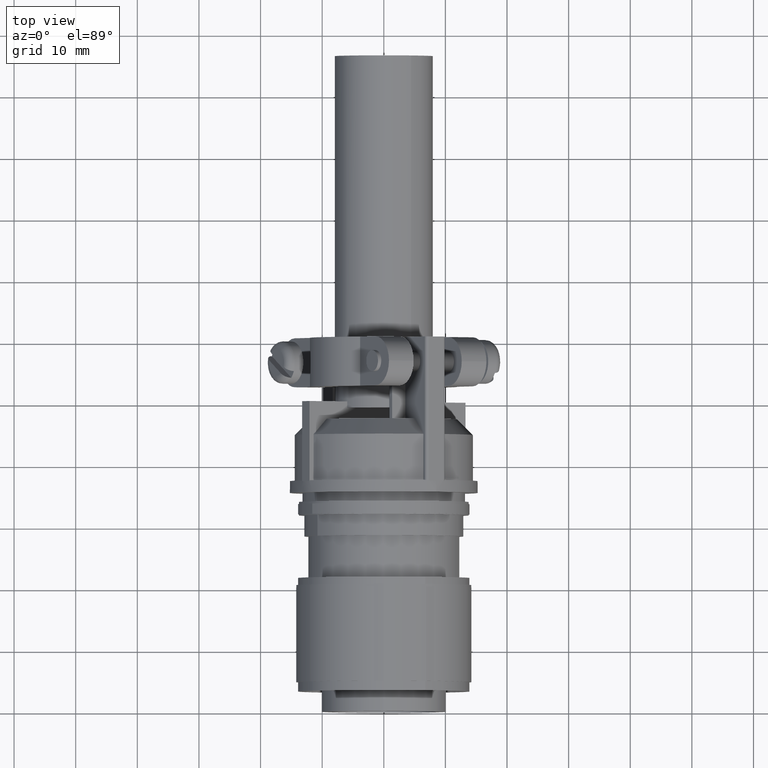
[diagram: clean part render]
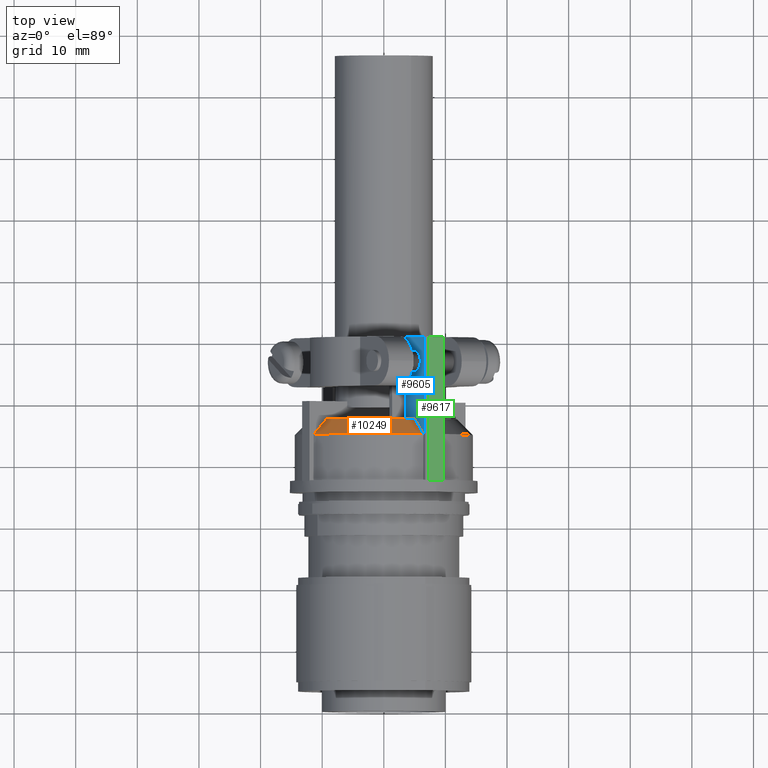
[diagram: same view with three faces highlighted in distinct colors, each labeled with its STEP entity id]
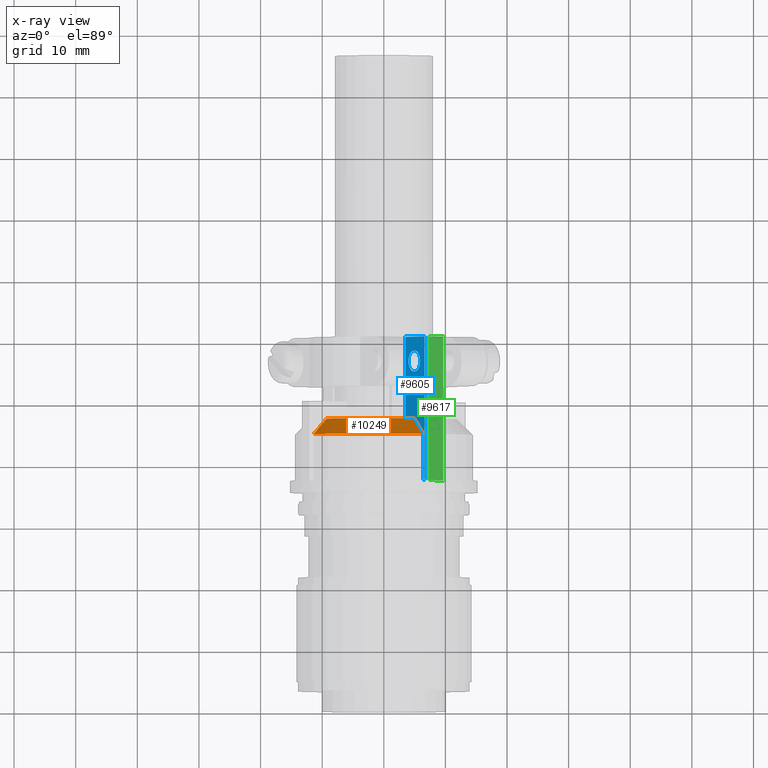
[diagram: x-ray of the same camera — body ghosted, the three highlighted faces saturated]
A machine part, top view with three faces highlighted in distinct colors.
The next image is the same camera in x-ray (body ghosted, the three faces saturated) — at least one of them is partly hidden behind the body in this view.
Their STEP definitions:

[orange] entity #10249 — the highlighted conical surface has half-angle 45 deg.
#2482 = AXIS2_PLACEMENT_3D ( 'NONE', #4506, #4508, #4511 ) ;
#2489 = AXIS2_PLACEMENT_3D ( 'NONE', #4646, #4647, #4649 ) ;
#3734 = DIRECTION ( 'NONE',  ( 1.000000000000000000, 0.0000000000000000000, 0.0000000000000000000 ) ) ;
#3739 = DIRECTION ( 'NONE',  ( 0.0000000000000000000, 0.0000000000000000000, 1.000000000000000000 ) ) ;
#3743 = CARTESIAN_POINT ( 'NONE',  ( 0.0000000000000000000, 0.0000000000000000000, 2.321558866024211500 ) ) ;
#4450 = CARTESIAN_POINT ( 'NONE',  ( 0.4639773701378114300, 0.07499999999999998300, 2.321558866024211500 ) ) ;
#4466 = CARTESIAN_POINT ( 'NONE',  ( 0.4977044622532403300, 0.07499999999999998300, 2.354853775603174000 ) ) ;
#4473 = CARTESIAN_POINT ( 'NONE',  ( 0.04250000000000004500, 0.4680745132988973200, 2.321558866024211500 ) ) ;
#4477 = VERTEX_POINT ( 'NONE', #6338 ) ;
#4478 = CARTESIAN_POINT ( 'NONE',  ( 0.04250000000000004500, 0.5015328349743050100, 2.354880116309348000 ) ) ;
#4481 = CARTESIAN_POINT ( 'NONE',  ( 0.5313866660034538600, 0.07499999999999999700, 2.388193915244678100 ) ) ;
#4484 = CARTESIAN_POINT ( 'NONE',  ( 0.5650442460551206000, 0.07499999999999999700, 2.421558866024211100 ) ) ;
#4486 = VERTEX_POINT ( 'NONE', #6347 ) ;
#4491 = CARTESIAN_POINT ( 'NONE',  ( 0.04250000000000002400, 0.5349770058996746700, 2.388215582636495200 ) ) ;
#4494 = CARTESIAN_POINT ( 'NONE',  ( 0.04250000000000002400, 0.5684133619119097200, 2.421558866024211100 ) ) ;
#4506 = CARTESIAN_POINT ( 'NONE',  ( 0.0000000000000000000, 0.0000000000000000000, 2.321558866024211500 ) ) ;
#4508 = DIRECTION ( 'NONE',  ( -0.0000000000000000000, -0.0000000000000000000, -1.000000000000000000 ) ) ;
#4511 = DIRECTION ( 'NONE',  ( -1.000000000000000000, 0.0000000000000000000, 0.0000000000000000000 ) ) ;
#4611 = VERTEX_POINT ( 'NONE', #6389 ) ;
#4646 = CARTESIAN_POINT ( 'NONE',  ( 0.0000000000000000000, 0.0000000000000000000, 2.421558866024211100 ) ) ;
#4647 = DIRECTION ( 'NONE',  ( -0.0000000000000000000, -0.0000000000000000000, -1.000000000000000000 ) ) ;
#4649 = DIRECTION ( 'NONE',  ( -1.000000000000000000, 0.0000000000000000000, 0.0000000000000000000 ) ) ;
#5272 = CIRCLE ( 'NONE', #2482, 0.4699999999999996400 ) ;
#5288 = CIRCLE ( 'NONE', #2489, 0.5699999999999996200 ) ;
#6338 = CARTESIAN_POINT ( 'NONE',  ( 0.04250000000000002400, 0.5684133619119097200, 2.421558866024211100 ) ) ;
#6347 = CARTESIAN_POINT ( 'NONE',  ( 0.04250000000000004500, 0.4680745132988973200, 2.321558866024211500 ) ) ;
#6389 = CARTESIAN_POINT ( 'NONE',  ( 0.4639773701378114300, 0.07499999999999998300, 2.321558866024211500 ) ) ;
#6514 = ORIENTED_EDGE ( 'NONE', *, *, #7683, .F. ) ;
#6515 = ORIENTED_EDGE ( 'NONE', *, *, #7722, .T. ) ;
#6516 = ORIENTED_EDGE ( 'NONE', *, *, #7685, .T. ) ;
#6517 = ORIENTED_EDGE ( 'NONE', *, *, #7687, .F. ) ;
#7683 = EDGE_CURVE ( 'NONE', #4611, #16303, #16967, .T. ) ;
#7685 = EDGE_CURVE ( 'NONE', #4486, #4477, #16949, .T. ) ;
#7687 = EDGE_CURVE ( 'NONE', #4486, #4611, #5272, .T. ) ;
#7722 = EDGE_CURVE ( 'NONE', #4477, #16303, #5288, .T. ) ;
#10249 = ADVANCED_FACE ( 'NONE', ( #18229 ), #18240, .T. ) ;
#11200 = EDGE_LOOP ( 'NONE', ( #6517, #6516, #6515, #6514 ) ) ;
#14224 = CARTESIAN_POINT ( 'NONE',  ( 0.5650442460551206000, 0.07499999999999999700, 2.421558866024211100 ) ) ;
#16303 = VERTEX_POINT ( 'NONE', #14224 ) ;
#16770 = AXIS2_PLACEMENT_3D ( 'NONE', #3743, #3739, #3734 ) ;
#16949 = B_SPLINE_CURVE_WITH_KNOTS ( 'NONE', 3,
 ( #4473, #4478, #4491, #4494 ),
 .UNSPECIFIED., .F., .F.,
 ( 4, 4 ),
 ( 0.01370706926169148700, 0.01730506337471610800 ),
 .UNSPECIFIED. ) ;
#16967 = B_SPLINE_CURVE_WITH_KNOTS ( 'NONE', 3,
 ( #4450, #4466, #4481, #4484 ),
 .UNSPECIFIED., .F., .F.,
 ( 4, 4 ),
 ( 0.01182331990781825700, 0.01543413581498872200 ),
 .UNSPECIFIED. ) ;
#18229 = FACE_OUTER_BOUND ( 'NONE', #11200, .T. ) ;
#18240 = CONICAL_SURFACE ( 'NONE', #16770, 0.4699999999999996400, 0.7853981633974482800 ) ;

[blue] entity #9605 — the highlighted planar face has unit normal (0.8301, -0, -0.5576).
#233 = EDGE_CURVE ( 'NONE', #453, #16327, #569, .T. ) ;
#234 = EDGE_CURVE ( 'NONE', #16327, #16310, #567, .T. ) ;
#235 = EDGE_CURVE ( 'NONE', #4588, #16310, #573, .T. ) ;
#453 = VERTEX_POINT ( 'NONE', #19336 ) ;
#567 = LINE ( 'NONE', #19303, #574 ) ;
#569 = LINE ( 'NONE', #19295, #572 ) ;
#572 = VECTOR ( 'NONE', #19297, 39.37007874015748100 ) ;
#573 = LINE ( 'NONE', #19311, #576 ) ;
#574 = VECTOR ( 'NONE', #19293, 39.37007874015748100 ) ;
#576 = VECTOR ( 'NONE', #19314, 39.37007874015748100 ) ;
#1556 = AXIS2_PLACEMENT_3D ( 'NONE', #14071, #14073, #14075 ) ;
#1575 = AXIS2_PLACEMENT_3D ( 'NONE', #14431, #14433, #14434 ) ;
#2516 = AXIS2_PLACEMENT_3D ( 'NONE', #4843, #4848, #4849 ) ;
#3444 = LINE ( 'NONE', #13755, #3447 ) ;
#3447 = VECTOR ( 'NONE', #13747, 39.37007874015748100 ) ;
#3461 = LINE ( 'NONE', #13852, #3509 ) ;
#3509 = VECTOR ( 'NONE', #13847, 39.37007874015748100 ) ;
#3587 = CIRCLE ( 'NONE', #1556, 0.06750000000000010200 ) ;
#3684 = CIRCLE ( 'NONE', #1575, 0.06750000000000010200 ) ;
#4450 = CARTESIAN_POINT ( 'NONE',  ( 0.4639773701378114300, 0.07499999999999998300, 2.321558866024211500 ) ) ;
#4466 = CARTESIAN_POINT ( 'NONE',  ( 0.4977044622532403300, 0.07499999999999998300, 2.354853775603174000 ) ) ;
#4481 = CARTESIAN_POINT ( 'NONE',  ( 0.5313866660034538600, 0.07499999999999999700, 2.388193915244678100 ) ) ;
#4484 = CARTESIAN_POINT ( 'NONE',  ( 0.5650442460551206000, 0.07499999999999999700, 2.421558866024211100 ) ) ;
#4586 = DIRECTION ( 'NONE',  ( 0.0000000000000000000, 0.0000000000000000000, 1.000000000000000000 ) ) ;
#4588 = VERTEX_POINT ( 'NONE', #6381 ) ;
#4589 = CARTESIAN_POINT ( 'NONE',  ( 0.5650442460551206000, 0.07499999999999999700, -0.1454515189346649300 ) ) ;
#4611 = VERTEX_POINT ( 'NONE', #6389 ) ;
#4843 = CARTESIAN_POINT ( 'NONE',  ( 0.3593089367457345000, 0.07499999999999998300, 2.719999999999999800 ) ) ;
#4844 = PLANE ( 'NONE',  #2516 ) ;
#4848 = DIRECTION ( 'NONE',  ( 3.868314762870591200E-017, -1.000000000000000000, 0.0000000000000000000 ) ) ;
#4849 = DIRECTION ( 'NONE',  ( 1.000000000000000000, 3.868314762870591200E-017, 0.0000000000000000000 ) ) ;
#5284 = LINE ( 'NONE', #4589, #5286 ) ;
#5286 = VECTOR ( 'NONE', #4586, 39.37007874015748100 ) ;
#5337 = FACE_OUTER_BOUND ( 'NONE', #11108, .T. ) ;
#5341 = FACE_BOUND ( 'NONE', #11103, .T. ) ;
#6381 = CARTESIAN_POINT ( 'NONE',  ( 0.3593089367457345000, 0.07499999999999998300, 2.321558866024211500 ) ) ;
#6389 = CARTESIAN_POINT ( 'NONE',  ( 0.4639773701378114300, 0.07499999999999998300, 2.321558866024211500 ) ) ;
#7683 = EDGE_CURVE ( 'NONE', #4611, #16303, #16967, .T. ) ;
#7716 = EDGE_CURVE ( 'NONE', #16303, #19733, #5284, .T. ) ;
#9605 = ADVANCED_FACE ( 'NONE', ( #5337, #5341 ), #4844, .F. ) ;
#11103 = EDGE_LOOP ( 'NONE', ( #20941, #20939 ) ) ;
#11108 = EDGE_LOOP ( 'NONE', ( #20954, #20952, #20950, #20948, #20946, #20944, #20943 ) ) ;
#13747 = DIRECTION ( 'NONE',  ( 1.000000000000000000, 3.868314762870591200E-017, 0.0000000000000000000 ) ) ;
#13755 = CARTESIAN_POINT ( 'NONE',  ( 0.3593089367457345000, 0.07499999999999998300, 2.715875068773271600 ) ) ;
#13847 = DIRECTION ( 'NONE',  ( 1.000000000000000000, 3.868314762870591200E-017, 0.0000000000000000000 ) ) ;
#13852 = CARTESIAN_POINT ( 'NONE',  ( 0.3593089367457345000, 0.07499999999999998300, 2.321558866024211500 ) ) ;
#14071 = CARTESIAN_POINT ( 'NONE',  ( 0.4614999999999999100, 0.07499999999999995600, 1.955999999999999700 ) ) ;
#14073 = DIRECTION ( 'NONE',  ( 3.868314762870591200E-017, -1.000000000000000000, 0.0000000000000000000 ) ) ;
#14075 = DIRECTION ( 'NONE',  ( 1.000000000000000000, 0.0000000000000000000, 0.0000000000000000000 ) ) ;
#14178 = CARTESIAN_POINT ( 'NONE',  ( 0.4614999999999999100, 0.07499999999999995600, 2.023499999999999900 ) ) ;
#14224 = CARTESIAN_POINT ( 'NONE',  ( 0.5650442460551206000, 0.07499999999999999700, 2.421558866024211100 ) ) ;
#14231 = CARTESIAN_POINT ( 'NONE',  ( 0.3593089367457345000, 0.07499999999999998300, 1.799999999999999800 ) ) ;
#14248 = CARTESIAN_POINT ( 'NONE',  ( 0.5799999999999998500, 0.07499999999999998300, 1.799999999999999800 ) ) ;
#14431 = CARTESIAN_POINT ( 'NONE',  ( 0.4614999999999999100, 0.07499999999999995600, 1.955999999999999700 ) ) ;
#14433 = DIRECTION ( 'NONE',  ( 3.868314762870591200E-017, -1.000000000000000000, 0.0000000000000000000 ) ) ;
#14434 = DIRECTION ( 'NONE',  ( 1.000000000000000000, 0.0000000000000000000, 0.0000000000000000000 ) ) ;
#14996 = CARTESIAN_POINT ( 'NONE',  ( 0.5650442460551206000, 0.07499999999999999700, 2.715875068773271600 ) ) ;
#15714 = EDGE_CURVE ( 'NONE', #19733, #453, #3444, .T. ) ;
#15877 = EDGE_CURVE ( 'NONE', #4588, #4611, #3461, .T. ) ;
#15959 = EDGE_CURVE ( 'NONE', #16257, #21426, #3587, .T. ) ;
#16257 = VERTEX_POINT ( 'NONE', #14178 ) ;
#16303 = VERTEX_POINT ( 'NONE', #14224 ) ;
#16310 = VERTEX_POINT ( 'NONE', #14231 ) ;
#16327 = VERTEX_POINT ( 'NONE', #14248 ) ;
#16830 = EDGE_CURVE ( 'NONE', #21426, #16257, #3684, .T. ) ;
#16967 = B_SPLINE_CURVE_WITH_KNOTS ( 'NONE', 3,
 ( #4450, #4466, #4481, #4484 ),
 .UNSPECIFIED., .F., .F.,
 ( 4, 4 ),
 ( 0.01182331990781825700, 0.01543413581498872200 ),
 .UNSPECIFIED. ) ;
#17642 = CARTESIAN_POINT ( 'NONE',  ( 0.4614999999999999100, 0.07499999999999995600, 1.888499999999999800 ) ) ;
#19293 = DIRECTION ( 'NONE',  ( -1.000000000000000000, -3.868314762870590600E-017, -0.0000000000000000000 ) ) ;
#19295 = CARTESIAN_POINT ( 'NONE',  ( 0.5799999999999998500, 0.07499999999999998300, 2.719999999999999800 ) ) ;
#19297 = DIRECTION ( 'NONE',  ( -0.0000000000000000000, -0.0000000000000000000, -1.000000000000000000 ) ) ;
#19303 = CARTESIAN_POINT ( 'NONE',  ( 0.3593089367457345000, 0.07499999999999998300, 1.799999999999999800 ) ) ;
#19311 = CARTESIAN_POINT ( 'NONE',  ( 0.3593089367457345000, 0.07499999999999998300, 2.719999999999999800 ) ) ;
#19314 = DIRECTION ( 'NONE',  ( -0.0000000000000000000, -0.0000000000000000000, -1.000000000000000000 ) ) ;
#19336 = CARTESIAN_POINT ( 'NONE',  ( 0.5799999999999998500, 0.07499999999999998300, 2.715875068773271600 ) ) ;
#19733 = VERTEX_POINT ( 'NONE', #14996 ) ;
#20939 = ORIENTED_EDGE ( 'NONE', *, *, #15959, .T. ) ;
#20941 = ORIENTED_EDGE ( 'NONE', *, *, #16830, .T. ) ;
#20943 = ORIENTED_EDGE ( 'NONE', *, *, #7683, .T. ) ;
#20944 = ORIENTED_EDGE ( 'NONE', *, *, #15877, .T. ) ;
#20946 = ORIENTED_EDGE ( 'NONE', *, *, #235, .F. ) ;
#20948 = ORIENTED_EDGE ( 'NONE', *, *, #234, .T. ) ;
#20950 = ORIENTED_EDGE ( 'NONE', *, *, #233, .T. ) ;
#20952 = ORIENTED_EDGE ( 'NONE', *, *, #15714, .T. ) ;
#20954 = ORIENTED_EDGE ( 'NONE', *, *, #7716, .T. ) ;
#21426 = VERTEX_POINT ( 'NONE', #17642 ) ;

[green] entity #9617 — the highlighted planar face has unit normal (-0.5576, 0, -0.8301).
#254 = EDGE_CURVE ( 'NONE', #16324, #21405, #607, .T. ) ;
#255 = EDGE_CURVE ( 'NONE', #21405, #16267, #609, .T. ) ;
#257 = EDGE_CURVE ( 'NONE', #19743, #16267, #610, .T. ) ;
#260 = EDGE_CURVE ( 'NONE', #16324, #16258, #619, .T. ) ;
#607 = LINE ( 'NONE', #18674, #611 ) ;
#609 = LINE ( 'NONE', #18495, #613 ) ;
#610 = LINE ( 'NONE', #18589, #617 ) ;
#611 = VECTOR ( 'NONE', #18546, 39.37007874015748100 ) ;
#613 = VECTOR ( 'NONE', #18661, 39.37007874015748100 ) ;
#617 = VECTOR ( 'NONE', #18633, 39.37007874015748100 ) ;
#619 = LINE ( 'NONE', #19185, #622 ) ;
#622 = VECTOR ( 'NONE', #19153, 39.37007874015748100 ) ;
#2524 = AXIS2_PLACEMENT_3D ( 'NONE', #4881, #4887, #4888 ) ;
#3560 = LINE ( 'NONE', #13933, #3566 ) ;
#3566 = VECTOR ( 'NONE', #13941, 39.37007874015748100 ) ;
#4881 = CARTESIAN_POINT ( 'NONE',  ( 0.5999999999999999800, 0.05499999999999985500, 2.719999999999999800 ) ) ;
#4885 = PLANE ( 'NONE',  #2524 ) ;
#4887 = DIRECTION ( 'NONE',  ( -1.000000000000000000, 0.0000000000000000000, 0.0000000000000000000 ) ) ;
#4888 = DIRECTION ( 'NONE',  ( 0.0000000000000000000, 0.0000000000000000000, 1.000000000000000000 ) ) ;
#5353 = FACE_OUTER_BOUND ( 'NONE', #11183, .T. ) ;
#9617 = ADVANCED_FACE ( 'NONE', ( #5353 ), #4885, .F. ) ;
#11183 = EDGE_LOOP ( 'NONE', ( #20895, #20893, #20891, #20889, #20887 ) ) ;
#13933 = CARTESIAN_POINT ( 'NONE',  ( 0.5999999999999999800, 0.05499999999999985500, 2.719999999999999800 ) ) ;
#13941 = DIRECTION ( 'NONE',  ( -0.0000000000000000000, 1.000000000000000000, -0.0000000000000000000 ) ) ;
#14179 = CARTESIAN_POINT ( 'NONE',  ( 0.5999999999999999800, 0.0000000000000000000, 2.719999999999999800 ) ) ;
#14188 = CARTESIAN_POINT ( 'NONE',  ( 0.5999999999999999800, 0.05499999999999985500, 1.799999999999999800 ) ) ;
#14245 = CARTESIAN_POINT ( 'NONE',  ( 0.5999999999999999800, -0.05499999999999983400, 2.719999999999999800 ) ) ;
#15028 = CARTESIAN_POINT ( 'NONE',  ( 0.5999999999999999800, 0.05499999999999985500, 2.719999999999999800 ) ) ;
#15926 = EDGE_CURVE ( 'NONE', #16258, #19743, #3560, .T. ) ;
#16258 = VERTEX_POINT ( 'NONE', #14179 ) ;
#16267 = VERTEX_POINT ( 'NONE', #14188 ) ;
#16324 = VERTEX_POINT ( 'NONE', #14245 ) ;
#17621 = CARTESIAN_POINT ( 'NONE',  ( 0.5999999999999999800, -0.05499999999999983400, 1.799999999999999800 ) ) ;
#18495 = CARTESIAN_POINT ( 'NONE',  ( 0.5999999999999999800, 0.05499999999999985500, 1.799999999999999800 ) ) ;
#18546 = DIRECTION ( 'NONE',  ( -0.0000000000000000000, -0.0000000000000000000, -1.000000000000000000 ) ) ;
#18589 = CARTESIAN_POINT ( 'NONE',  ( 0.5999999999999999800, 0.05499999999999985500, 2.719999999999999800 ) ) ;
#18633 = DIRECTION ( 'NONE',  ( -0.0000000000000000000, -0.0000000000000000000, -1.000000000000000000 ) ) ;
#18661 = DIRECTION ( 'NONE',  ( -0.0000000000000000000, 1.000000000000000000, -0.0000000000000000000 ) ) ;
#18674 = CARTESIAN_POINT ( 'NONE',  ( 0.5999999999999999800, -0.05499999999999983400, 2.719999999999999800 ) ) ;
#19153 = DIRECTION ( 'NONE',  ( -0.0000000000000000000, 1.000000000000000000, -0.0000000000000000000 ) ) ;
#19185 = CARTESIAN_POINT ( 'NONE',  ( 0.5999999999999999800, 0.05499999999999985500, 2.719999999999999800 ) ) ;
#19743 = VERTEX_POINT ( 'NONE', #15028 ) ;
#20887 = ORIENTED_EDGE ( 'NONE', *, *, #254, .T. ) ;
#20889 = ORIENTED_EDGE ( 'NONE', *, *, #260, .F. ) ;
#20891 = ORIENTED_EDGE ( 'NONE', *, *, #15926, .F. ) ;
#20893 = ORIENTED_EDGE ( 'NONE', *, *, #257, .F. ) ;
#20895 = ORIENTED_EDGE ( 'NONE', *, *, #255, .T. ) ;
#21405 = VERTEX_POINT ( 'NONE', #17621 ) ;